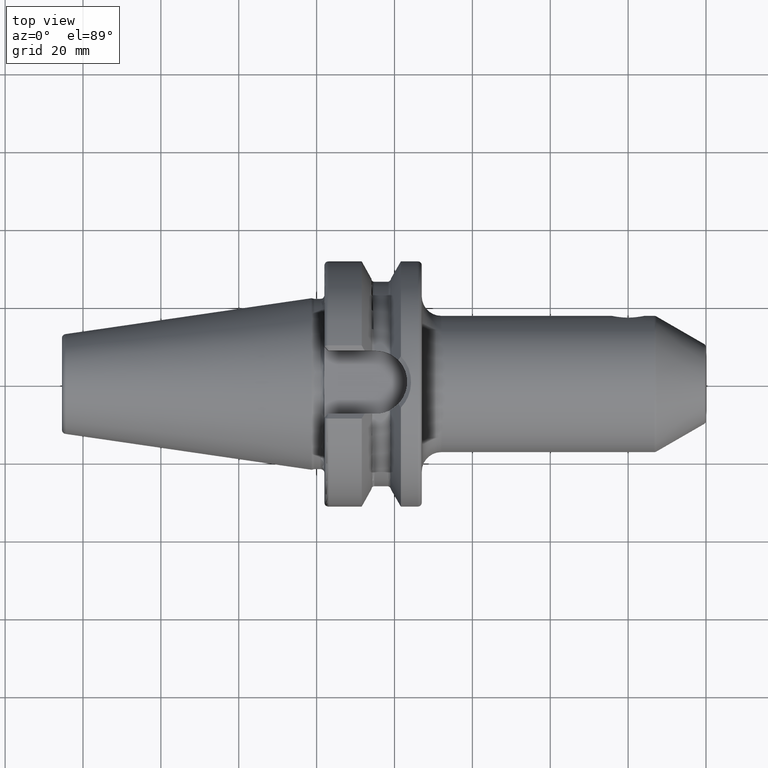
[diagram: clean part render]
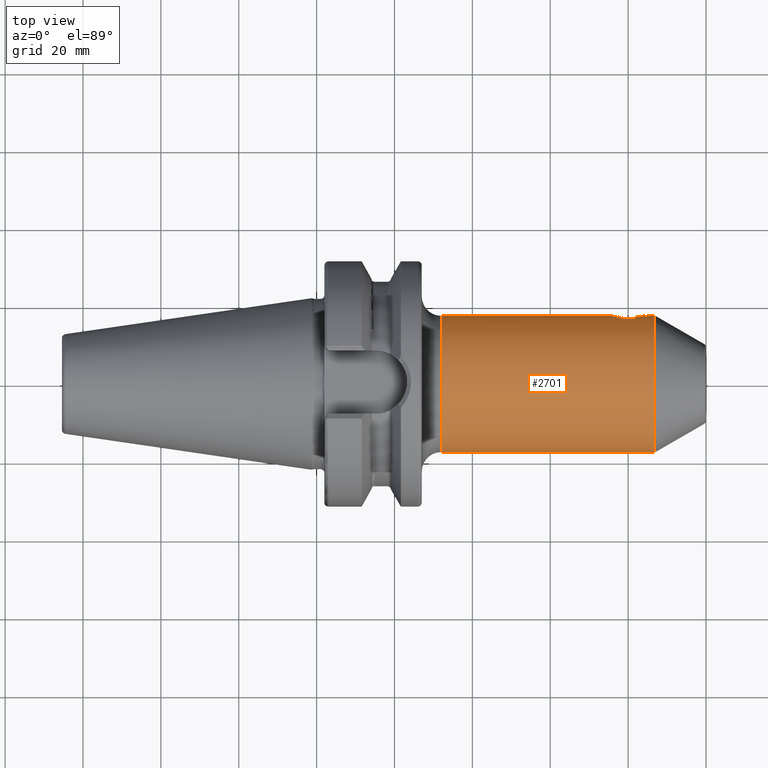
[diagram: same view with one face highlighted and labeled with its STEP entity id]
A machine part, top view. The second image highlights one B-rep face of the part: STEP entity #2701.
In plain terms, the highlighted cylindrical surface (partial cylindrical patch) has radius 17.5 mm, axis along (1, 0, 0).
Its self-contained STEP definition (entity closure, byte-faithful):
#856=CARTESIAN_POINT('',(8.673205080757E1,0.E0,0.E0));
#857=DIRECTION('',(-1.E0,0.E0,0.E0));
#858=DIRECTION('',(0.E0,-1.E0,0.E0));
#859=AXIS2_PLACEMENT_3D('',#856,#857,#858);
#861=CARTESIAN_POINT('',(3.2E1,0.E0,0.E0));
#862=DIRECTION('',(1.E0,0.E0,0.E0));
#863=DIRECTION('',(0.E0,1.E0,0.E0));
#864=AXIS2_PLACEMENT_3D('',#861,#862,#863);
#866=CARTESIAN_POINT('',(8.425E1,1.75E1,0.E0));
#867=CARTESIAN_POINT('',(8.425E1,1.75E1,2.634317191660E-1));
#868=CARTESIAN_POINT('',(8.420208726094E1,1.748826517792E1,7.806625087815E-1));
#869=CARTESIAN_POINT('',(8.398677325757E1,1.743725248176E1,1.540648312937E0));
#870=CARTESIAN_POINT('',(8.363981678712E1,1.736036531771E1,2.240077948272E0));
#871=CARTESIAN_POINT('',(8.316840210629E1,1.726669907783E1,2.868145562602E0));
#872=CARTESIAN_POINT('',(8.259644558070E1,1.716981329500E1,3.394846533561E0));
#873=CARTESIAN_POINT('',(8.192817944545E1,1.708051808425E1,3.814413147046E0));
#874=CARTESIAN_POINT('',(8.119914493718E1,1.701270528919E1,4.102914301866E0));
#875=CARTESIAN_POINT('',(8.041277497905E1,1.697495044807E1,4.254648710213E0));
#876=CARTESIAN_POINT('',(7.962509306350E1,1.697408329136E1,4.258063395001E0));
#877=CARTESIAN_POINT('',(7.883920633400E1,1.701002926814E1,4.113847413531E0));
#878=CARTESIAN_POINT('',(7.810635398614E1,1.707655327527E1,3.831974659200E0));
#879=CARTESIAN_POINT('',(7.742879544078E1,1.716589657641E1,3.414570300521E0));
#880=CARTESIAN_POINT('',(7.684805036710E1,1.726360593276E1,2.886898261796E0));
#881=CARTESIAN_POINT('',(7.636892952105E1,1.735848480104E1,2.255012155257E0));
#882=CARTESIAN_POINT('',(7.601704762525E1,1.743636023605E1,1.551498486941E0));
#883=CARTESIAN_POINT('',(7.579851932170E1,1.748811428361E1,7.858940586887E-1));
#884=CARTESIAN_POINT('',(7.575E1,1.75E1,2.651968971549E-1));
#885=CARTESIAN_POINT('',(7.575E1,1.75E1,0.E0));
#902=DIRECTION('',(-1.E0,0.E0,4.034151754499E-12));
#903=VECTOR('',#902,2.482050807569E0);
#904=CARTESIAN_POINT('',(8.673205080757E1,1.75E1,-1.001189805416E-11));
#905=LINE('',#904,#903);
#927=DIRECTION('',(-1.E0,0.E0,5.637030524903E-14));
#928=VECTOR('',#927,4.375E1);
#929=CARTESIAN_POINT('',(7.575E1,1.75E1,0.E0));
#930=LINE('',#929,#928);
#936=DIRECTION('',(-1.E0,0.E0,-2.279350507412E-13));
#937=VECTOR('',#936,5.473205080757E1);
#938=CARTESIAN_POINT('',(8.673205080757E1,-1.75E1,1.000748212438E-11));
#939=LINE('',#938,#937);
#1527=VERTEX_POINT('',#866);
#1528=VERTEX_POINT('',#885);
#1535=CARTESIAN_POINT('',(3.2E1,-1.75E1,0.E0));
#1536=CARTESIAN_POINT('',(3.2E1,1.75E1,0.E0));
#1537=VERTEX_POINT('',#1535);
#1538=VERTEX_POINT('',#1536);
#1539=CARTESIAN_POINT('',(8.673205080757E1,1.75E1,0.E0));
#1540=CARTESIAN_POINT('',(8.673205080757E1,-1.75E1,0.E0));
#1541=VERTEX_POINT('',#1539);
#1542=VERTEX_POINT('',#1540);
#2683=CARTESIAN_POINT('',(2.335E1,0.E0,0.E0));
#2684=DIRECTION('',(1.E0,0.E0,0.E0));
#2685=DIRECTION('',(0.E0,-1.E0,0.E0));
#2686=AXIS2_PLACEMENT_3D('',#2683,#2684,#2685);
#2687=CYLINDRICAL_SURFACE('',#2686,1.75E1);
#2689=ORIENTED_EDGE('',*,*,#2688,.F.);
#2691=ORIENTED_EDGE('',*,*,#2690,.T.);
#2692=ORIENTED_EDGE('',*,*,#2675,.F.);
#2694=ORIENTED_EDGE('',*,*,#2693,.F.);
#2696=ORIENTED_EDGE('',*,*,#2695,.F.);
#2698=ORIENTED_EDGE('',*,*,#2697,.F.);
#2699=EDGE_LOOP('',(#2689,#2691,#2692,#2694,#2696,#2698));
#2700=FACE_OUTER_BOUND('',#2699,.F.);
#2701=ADVANCED_FACE('',(#2700),#2687,.T.);
#860=CIRCLE('',#859,1.75E1);
#865=CIRCLE('',#864,1.75E1);
#886=B_SPLINE_CURVE_WITH_KNOTS('',3,(#866,#867,#868,#869,#870,#871,#872,#873,
#874,#875,#876,#877,#878,#879,#880,#881,#882,#883,#884,#885),.UNSPECIFIED.,.F.,
.F.,(4,1,1,1,1,1,1,1,1,1,1,1,1,1,1,1,1,4),(0.E0,5.882352941176E-2,
1.176470588235E-1,1.764705882353E-1,2.352941176471E-1,2.941176470588E-1,
3.529411764706E-1,4.117647058824E-1,4.705882352941E-1,5.294117647059E-1,
5.882352941176E-1,6.470588235294E-1,7.058823529412E-1,7.647058823529E-1,
8.235294117647E-1,8.823529411765E-1,9.411764705882E-1,1.E0),.UNSPECIFIED.);
#2675=EDGE_CURVE('',#1538,#1537,#865,.T.);
#2688=EDGE_CURVE('',#1542,#1541,#860,.T.);
#2690=EDGE_CURVE('',#1542,#1537,#939,.T.);
#2693=EDGE_CURVE('',#1528,#1538,#930,.T.);
#2695=EDGE_CURVE('',#1527,#1528,#886,.T.);
#2697=EDGE_CURVE('',#1541,#1527,#905,.T.);